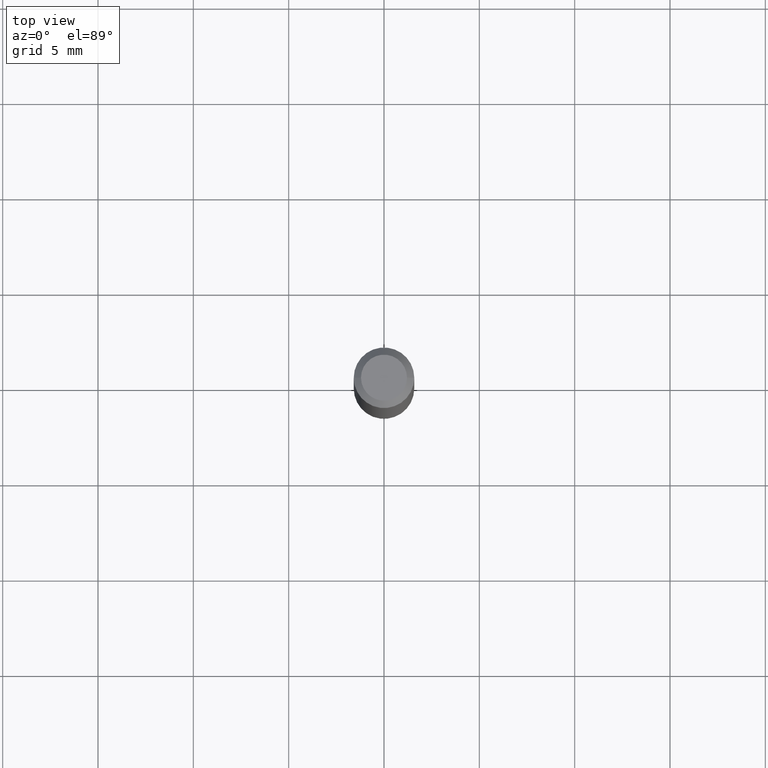
[diagram: clean part render]
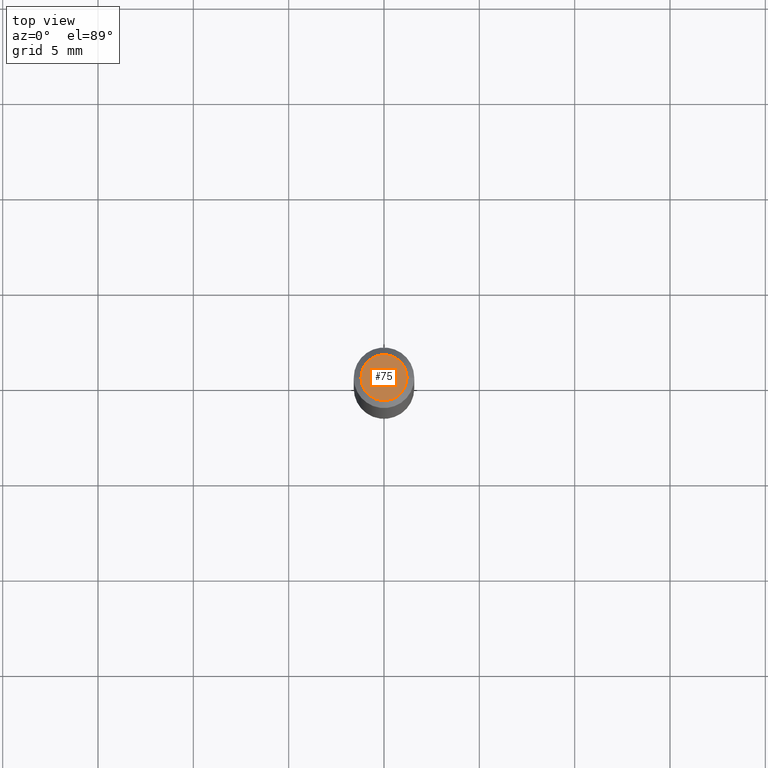
[diagram: same view with one face highlighted and labeled with its STEP entity id]
A machine part, top view. The second image highlights one B-rep face of the part: STEP entity #75.
In plain terms, the highlighted planar face has unit normal (0, -0, -1).
Its self-contained STEP definition (entity closure, byte-faithful):
#3 = ORIENTED_EDGE ( 'NONE', *, *, #422, .T. ) ;
#23 = AXIS2_PLACEMENT_3D ( 'NONE', #468, #470, #178 ) ;
#40 = EDGE_CURVE ( 'NONE', #58, #313, #69, .T. ) ;
#58 = VERTEX_POINT ( 'NONE', #99 ) ;
#60 = DIRECTION ( 'NONE',  ( 1.000000000000000000, -6.982962677686266711E-15, 4.852736867747365086E-29 ) ) ;
#69 = CIRCLE ( 'NONE', #135, 0.04750000000000000749 ) ;
#75 = ADVANCED_FACE ( 'NONE', ( #232 ), #224, .F. ) ;
#99 = CARTESIAN_POINT ( 'NONE',  ( 0.04750000000000000749, -4.035134999187568762E-16, 2.731847993664288856E-16 ) ) ;
#135 = AXIS2_PLACEMENT_3D ( 'NONE', #342, #373, #60 ) ;
#178 = DIRECTION ( 'NONE',  ( -1.000000000000000000, 6.982962677686265922E-15, -4.876176775795935793E-29 ) ) ;
#207 = CARTESIAN_POINT ( 'NONE',  ( -6.680649051745406845E-45, 9.538196290434862081E-31, 2.731847993664263218E-16 ) ) ;
#224 = PLANE ( 'NONE',  #23 ) ;
#232 = FACE_OUTER_BOUND ( 'NONE', #426, .T. ) ;
#283 = CIRCLE ( 'NONE', #349, 0.04750000000000000749 ) ;
#313 = VERTEX_POINT ( 'NONE', #314 ) ;
#314 = CARTESIAN_POINT ( 'NONE',  ( -0.04750000000000000749, 3.578768372314221353E-16, 2.731847993664239060E-16 ) ) ;
#328 = DIRECTION ( 'NONE',  ( 1.000000000000000000, -6.982962677686266711E-15, 4.852736867747365086E-29 ) ) ;
#342 = CARTESIAN_POINT ( 'NONE',  ( -6.680649051745406845E-45, 9.538196290434862081E-31, 2.731847993664263218E-16 ) ) ;
#349 = AXIS2_PLACEMENT_3D ( 'NONE', #207, #362, #328 ) ;
#358 = ORIENTED_EDGE ( 'NONE', *, *, #40, .T. ) ;
#362 = DIRECTION ( 'NONE',  ( -2.445468806185136597E-29, 3.491481338843145583E-15, 1.000000000000000000 ) ) ;
#373 = DIRECTION ( 'NONE',  ( -2.445468806185136597E-29, 3.491481338843145583E-15, 1.000000000000000000 ) ) ;
#422 = EDGE_CURVE ( 'NONE', #313, #58, #283, .T. ) ;
#426 = EDGE_LOOP ( 'NONE', ( #3, #358 ) ) ;
#468 = CARTESIAN_POINT ( 'NONE',  ( 3.316907271900976589E-16, 0.04750000000000000749, -2.925296391183627249E-17 ) ) ;
#470 = DIRECTION ( 'NONE',  ( 2.438088387897960049E-29, -3.491481338843145188E-15, -1.000000000000000000 ) ) ;